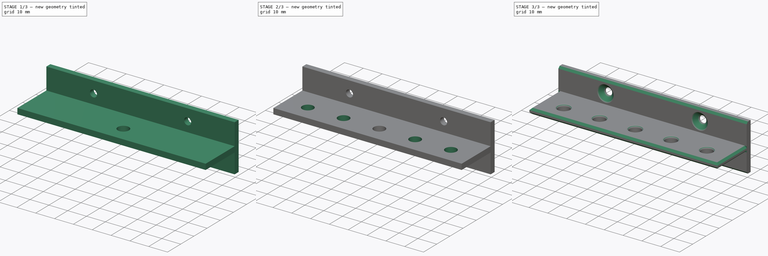
[diagram: build sequence overview — one tinted view per stage of 3, left to right]
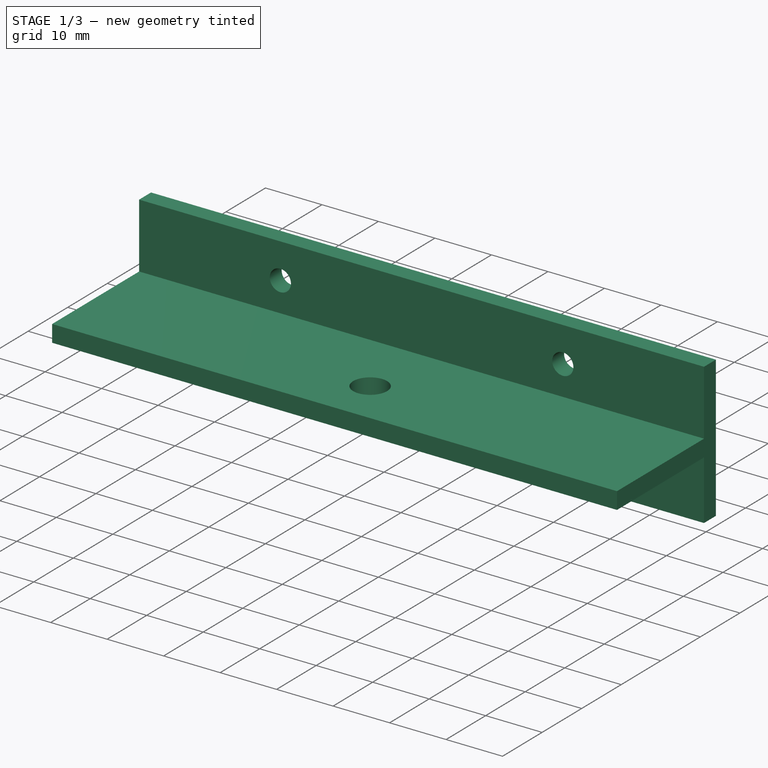
[diagram: stage 1 of 3 — iso view after this stage's code; geometry added in this stage tinted green]
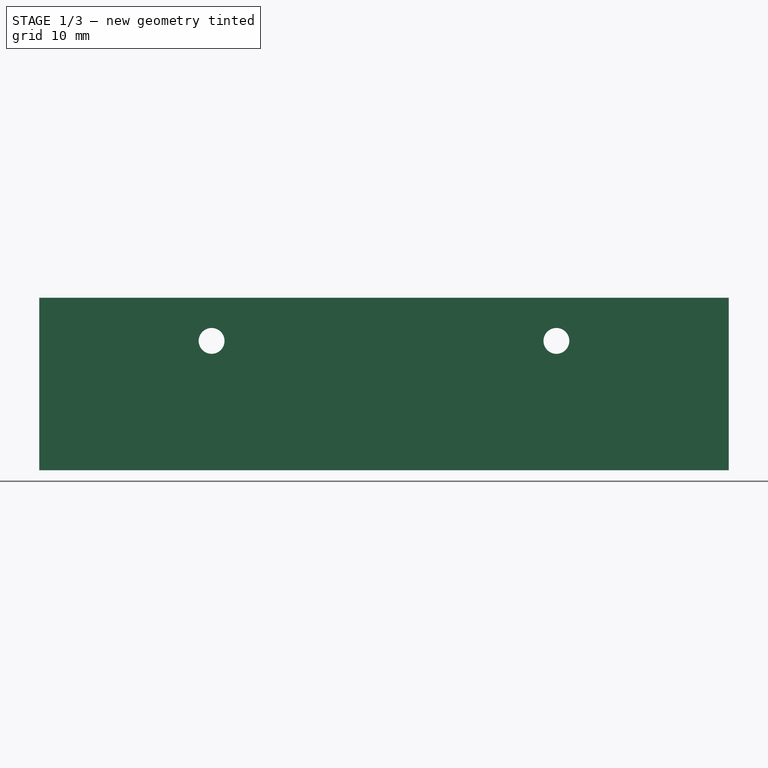
[diagram: stage 1 of 3 — front view after this stage's code; geometry added in this stage tinted green]
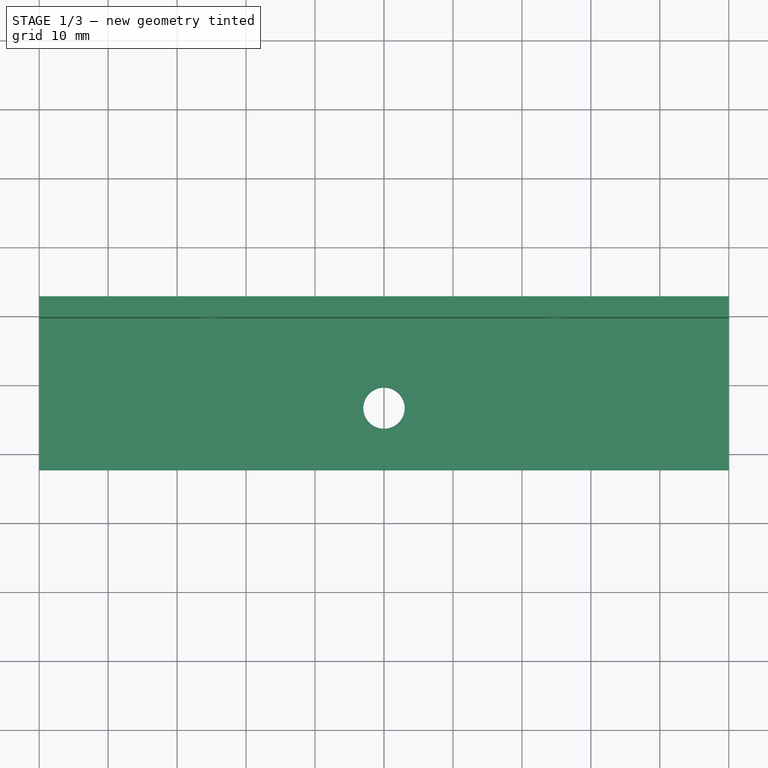
[diagram: stage 1 of 3 — top view after this stage's code; geometry added in this stage tinted green]
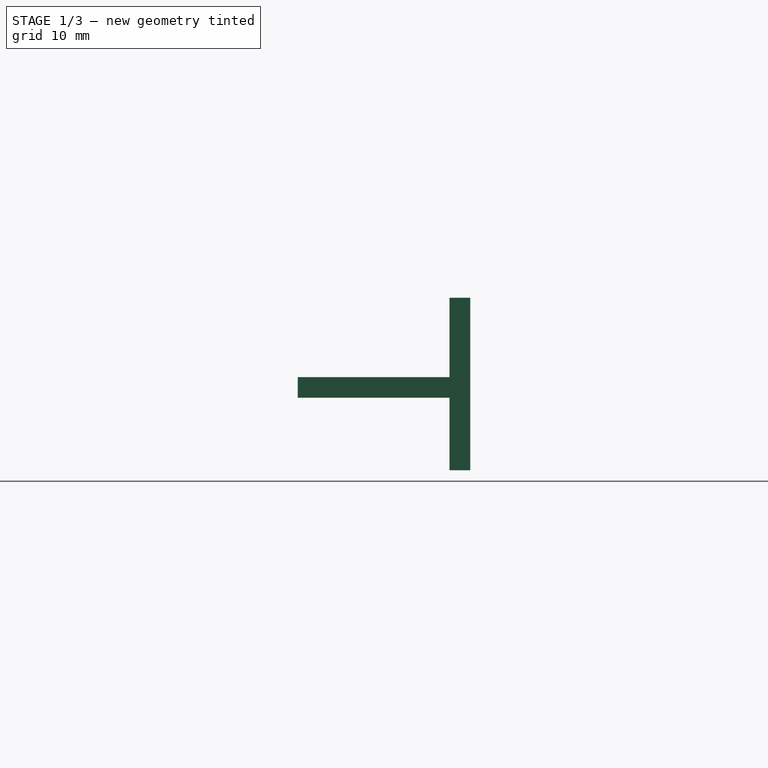
[diagram: stage 1 of 3 — right view after this stage's code; geometry added in this stage tinted green]
FCSTD DOCUMENT  (FreeCAD 0.20R29603 (Git))
Label: 5xScrewdriverWallHolder
License: All rights reserved
LicenseURL: http://en.wikipedia.org/wiki/All_rights_reserved
objects: Sketcher::SketchObject×3, PartDesign::Pad×2, PartDesign::LinearPattern×2, PartDesign::Chamfer×2, Spreadsheet::Sheet×1, PartDesign::Pocket×1, PartDesign::Fillet×1, PartDesign::Body×1, App::Part×1
note: 18 computed .brp shape members not serialized (recipe doc carries the construction recipe); baked Part::Feature solids carry a one-line shape summary decoded from their .brp

FEATURE [Spreadsheet::Sheet] Spreadsheet  label="m"
  cells = A1=tool_width; B1(tool_width)=51; A2=tool_depth; B2(tool_depth)=21.5; A3=holder_width; B3(holder_width)==B1 + B6; C3=Calculated, Do not change; A4=holder_depth; B4(holder_depth)==B2 + B6; C4=Calculated, Do not change; E4=Screw_head_Circumference; F4=Screw_Head_Height; G4=Screw_Shaft_Circumference; A5=holder_height; B5(holder_height)=25; D5=#6; E5=6.84; F5=2.5; G5=3.5; A6=wall_thickness; B6(wall_thickness)=2.5; A7=screwhead_circumference; B7(screwhead_circumference)=7; A8=screwhead_height; B8(screwhead_height)=2.5; A9=screw_shaft_circumference; B9(screw_shaft_circumference)=3.75; A10=Drill_Bit_Circumference; B10(Drill_Bit_Circumference)==screwhead_circumference + 0.5; C10=Calculated, Do not change
FEATURE [Sketcher::SketchObject] Sketch
  FullyConstrained = true
  MapMode = 5
  Support = -> [XY_Plane001]
  sketch-geometry (5):
    g0: LineSegment StartX=-50 StartY=12.5 StartZ=0 EndX=-50 EndY=-12.5 EndZ=0
    g1: LineSegment StartX=-50 StartY=-12.5 StartZ=0 EndX=50 EndY=-12.5 EndZ=0
    g2: LineSegment StartX=50 StartY=-12.5 StartZ=0 EndX=50 EndY=12.5 EndZ=0
    g3: LineSegment StartX=50 StartY=12.5 StartZ=0 EndX=-50 EndY=12.5 EndZ=0
    g4: GeomPoint X=0 Y=0 Z=0
  constraints (12):
    c: Coincident(g0,g1)
    c: Coincident(g1,g2)
    c: Coincident(g2,g3)
    c: Coincident(g3,g0)
    c: Horizontal(g1)
    c: Horizontal(g3)
    c: Vertical(g0)
    c: Vertical(g2)
    c: Symmetric(g1,g0,g4)
    c: Coincident(g4,g-1)
    c: DistanceY(g2,g2) = 25
    c: DistanceX(g3,g3) = 100
FEATURE [PartDesign::Pad] Pad
  Direction = (0,0,1)
  Length = 3
  Length2 = 10
  Profile = -> Sketch
  ReferenceAxis = -> Sketch [N_Axis]
  Type = 0
FEATURE [Sketcher::SketchObject] Sketch001
  AttachmentOffset = pos=(0,2,-12.5) rot=(0,0,1;0rad)
  FullyConstrained = true
  MapMode = 5
  Placement = pos=(0,12.5,2) rot=(1,0,0;1.5708rad)
  Support = -> [XZ_Plane001]
  expr: Constraints[12] = <<m>>.screw_shaft_circumference
  sketch-geometry (7):
    g0: LineSegment StartX=-50 StartY=12.5 StartZ=0 EndX=-50 EndY=-12.5 EndZ=0
    g1: LineSegment StartX=-50 StartY=-12.5 StartZ=0 EndX=50 EndY=-12.5 EndZ=0
    g2: LineSegment StartX=50 StartY=-12.5 StartZ=0 EndX=50 EndY=12.5 EndZ=0
    g3: LineSegment StartX=50 StartY=12.5 StartZ=0 EndX=-50 EndY=12.5 EndZ=0
    g4: GeomPoint X=0 Y=0 Z=0
    g5: Circle CenterX=-25 CenterY=6.25 CenterZ=0 NormalX=0 NormalY=0 NormalZ=1 AngleXU=0 Radius=1.875
    g6: Circle CenterX=25 CenterY=6.25 CenterZ=0 NormalX=0 NormalY=0 NormalZ=1 AngleXU=0 Radius=1.875
  constraints (18):
    c: Coincident(g0,g1)
    c: Coincident(g1,g2)
    c: Coincident(g2,g3)
    c: Coincident(g3,g0)
    c: Horizontal(g1)
    c: Horizontal(g3)
    c: Vertical(g0)
    c: Vertical(g2)
    c: Symmetric(g1,g0,g4)
    c: Coincident(g4,g-1)
    c: DistanceY(g2,g2) = 25
    c: DistanceX(g3,g3) = 100
    c: Diameter(g5) = 3.75
    c: DistanceX(g0,g5) = 25
    c: DistanceY(g4,g5) = 6.25
    c: Equal(g5,g6)
    c: Horizontal(g5,g6)
    c: DistanceX(g4,g6) = 25
FEATURE [PartDesign::Pad] Pad001
  BaseFeature = -> Pad
  Direction = (0,-1,2e-16)
  Length = 3
  Length2 = 10
  Profile = -> Sketch001
  ReferenceAxis = -> Sketch001 [N_Axis]
  Type = 0
FEATURE [Sketcher::SketchObject] Sketch002
  AttachmentOffset = pos=(0,0,3) rot=(0,0,1;0rad)
  FullyConstrained = true
  MapMode = 5
  Placement = pos=(0,0,3) rot=(0,0,1;0rad)
  Support = -> [XY_Plane001]
  sketch-geometry (1):
    g0: Circle CenterX=0 CenterY=-3.5 CenterZ=0 NormalX=0 NormalY=0 NormalZ=1 AngleXU=0 Radius=3
  constraints (3):
    c: Diameter(g0) = 6
    c: DistanceY(g0,g-1) = 3.5
    c: PointOnObject(g0,g-2)
FEATURE [PartDesign::Pocket] Pocket
  BaseFeature = -> Pad001
  Direction = (0,0,-1)
  Length = 5
  Length2 = 5
  Profile = -> Sketch002
  ReferenceAxis = -> Sketch002 [N_Axis]
  Type = 1
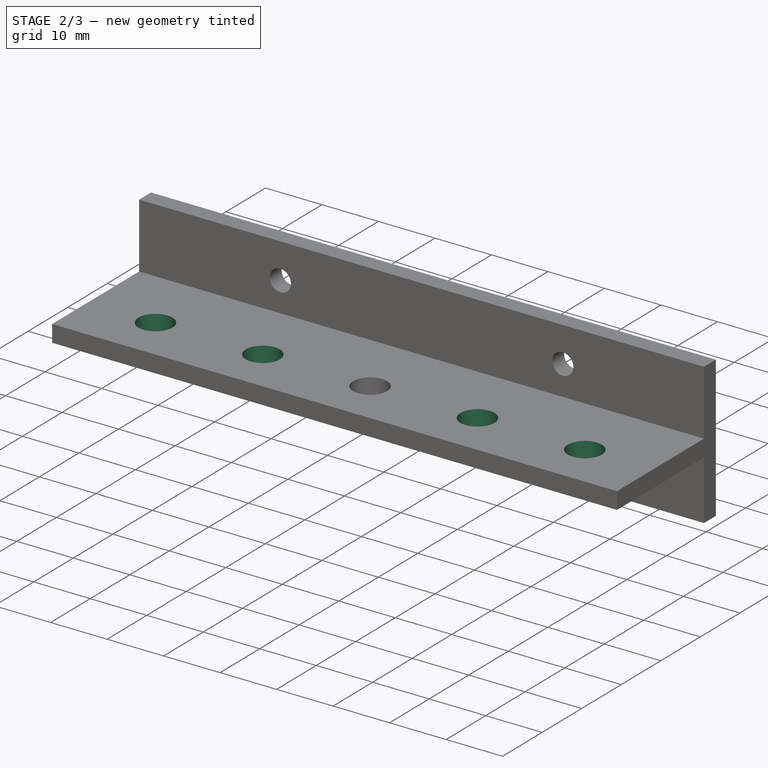
[diagram: stage 2 of 3 — iso view after this stage's code; geometry added in this stage tinted green]
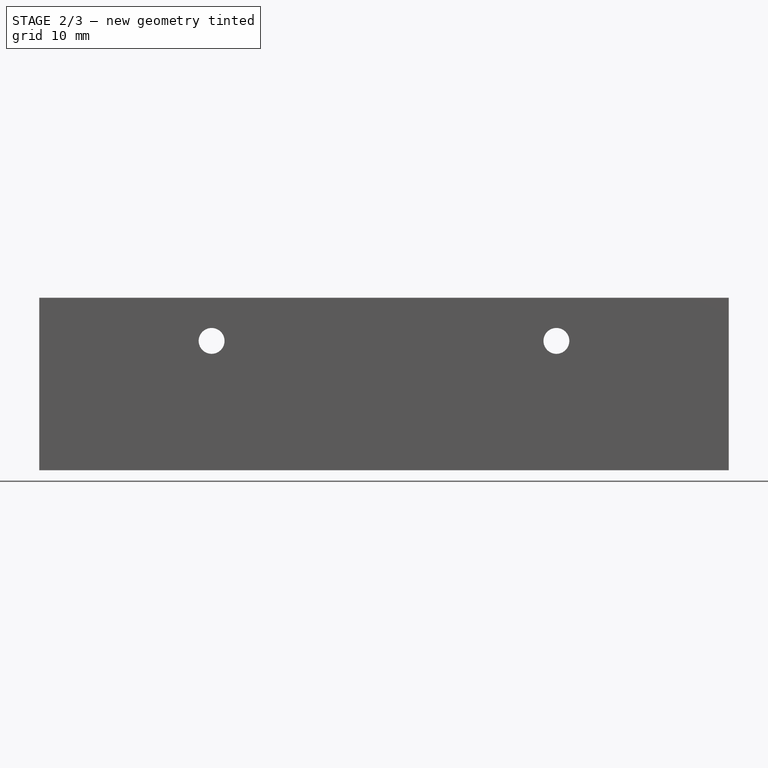
[diagram: stage 2 of 3 — front view after this stage's code; geometry added in this stage tinted green]
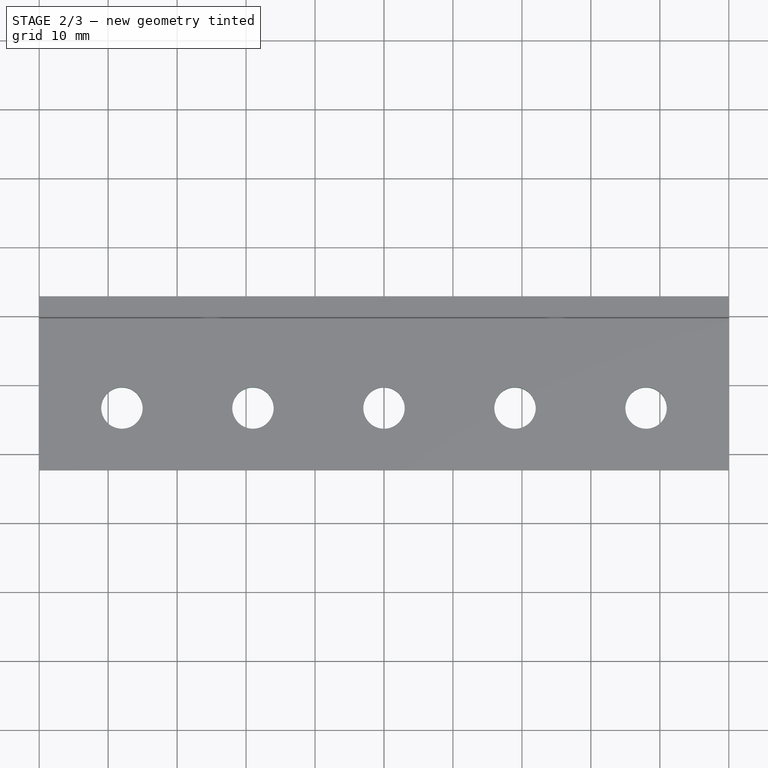
[diagram: stage 2 of 3 — top view after this stage's code; geometry added in this stage tinted green]
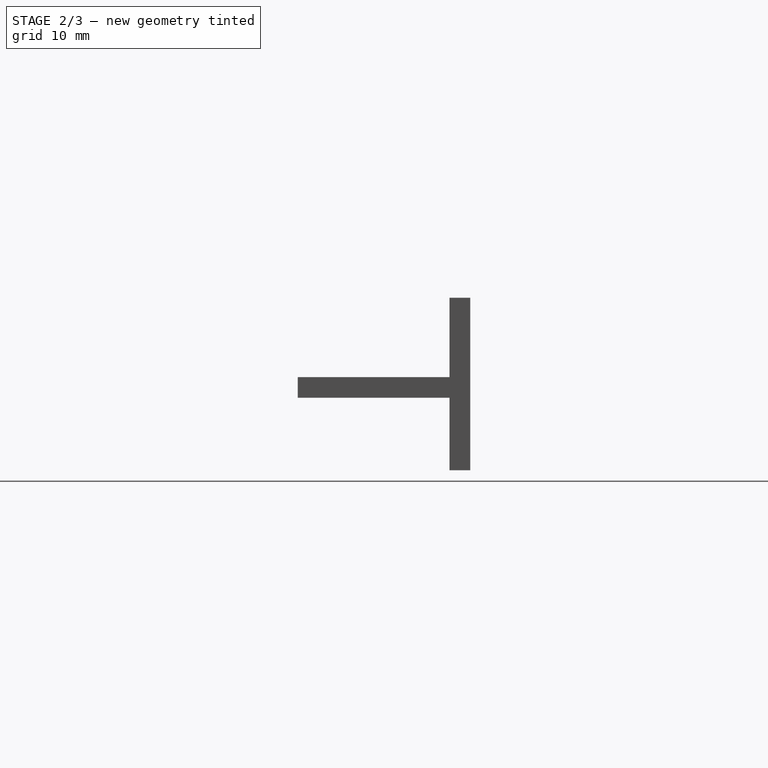
[diagram: stage 2 of 3 — right view after this stage's code; geometry added in this stage tinted green]
FEATURE [PartDesign::LinearPattern] LinearPattern
  BaseFeature = -> Pocket
  Direction = -> X_Axis001
  Length = 38
  Occurrences = 3
  Originals = -> [Pocket]
FEATURE [PartDesign::LinearPattern] LinearPattern001
  BaseFeature = -> LinearPattern
  Direction = -> Sketch002 [H_Axis]
  Length = 38
  Occurrences = 3
  Originals = -> [Pocket]
  Reversed = true
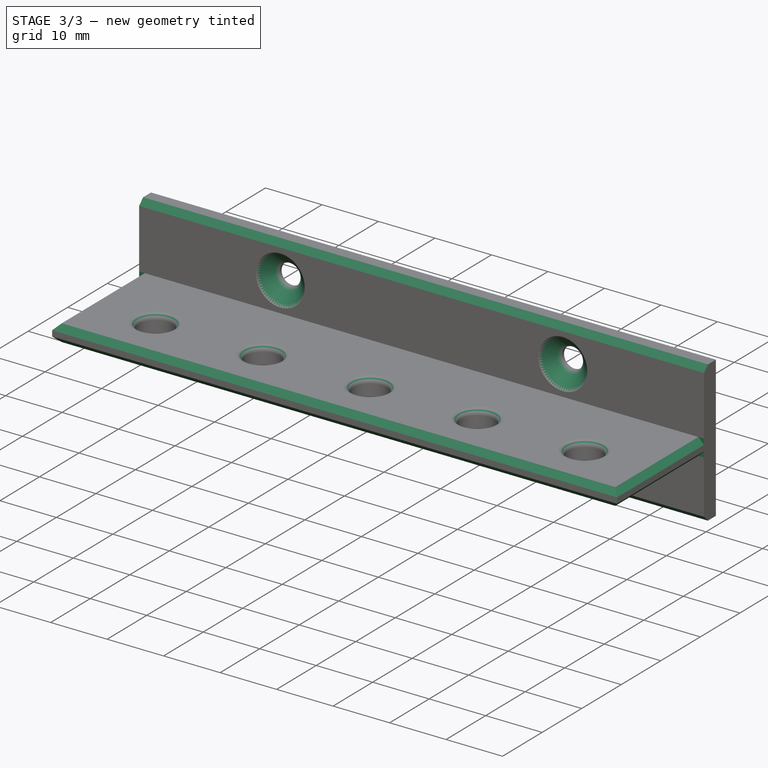
[diagram: stage 3 of 3 — iso view after this stage's code; geometry added in this stage tinted green]
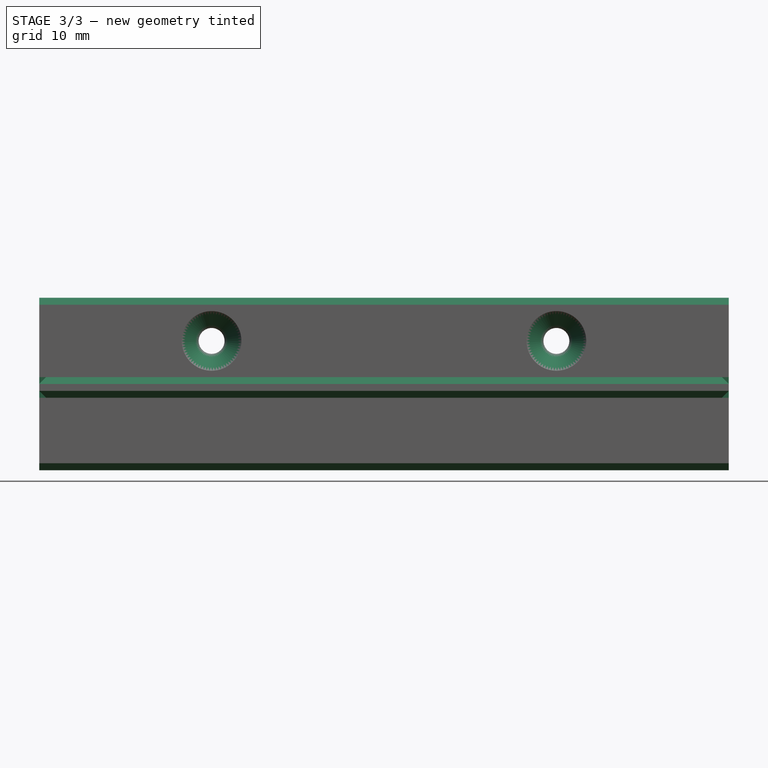
[diagram: stage 3 of 3 — front view after this stage's code; geometry added in this stage tinted green]
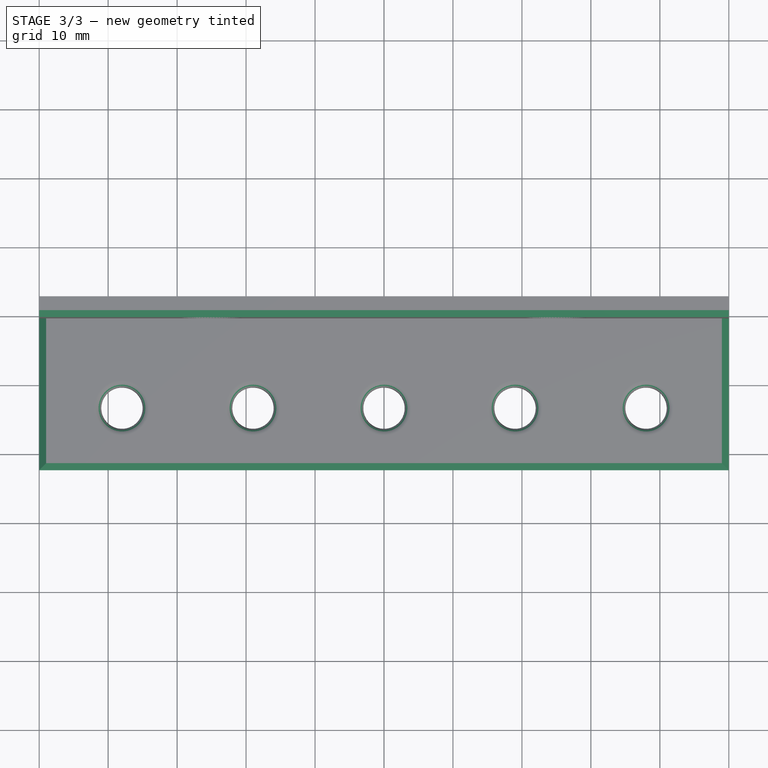
[diagram: stage 3 of 3 — top view after this stage's code; geometry added in this stage tinted green]
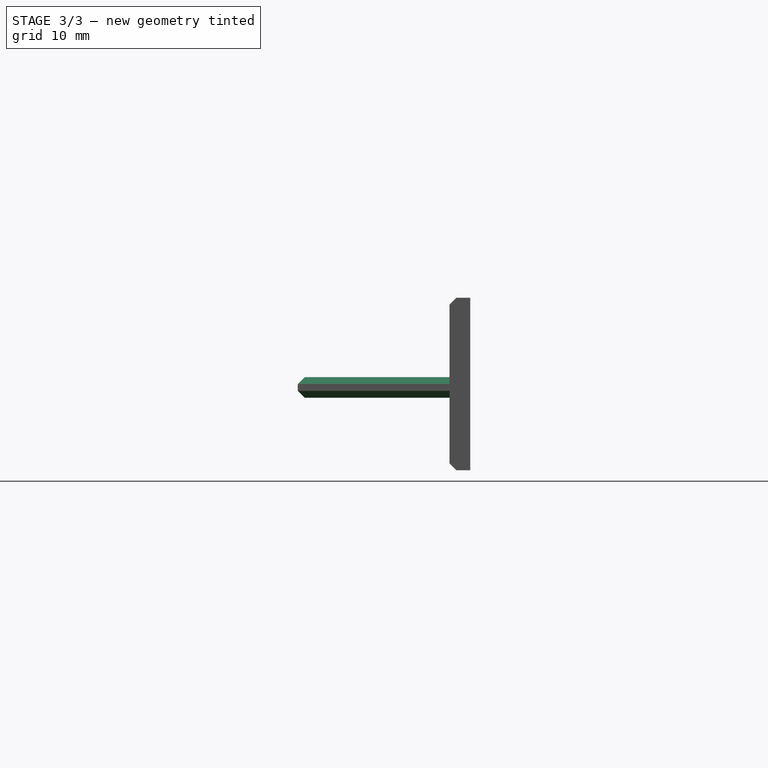
[diagram: stage 3 of 3 — right view after this stage's code; geometry added in this stage tinted green]
FEATURE [PartDesign::Fillet] Fillet
  Base = -> LinearPattern001 [Edge36,Edge34,Edge35,Edge37,Edge38]
  BaseFeature = -> LinearPattern001
  Radius = 1
  SupportTransform = false
  UseAllEdges = false
FEATURE [PartDesign::Chamfer] Chamfer
  Angle = 45
  Base = -> Fillet [Edge15,Edge16]
  BaseFeature = -> Fillet
  ChamferType = 0
  FlipDirection = false
  Size = 2.45
  Size2 = 1
  SupportTransform = false
  UseAllEdges = false
FEATURE [PartDesign::Chamfer] Chamfer001
  Angle = 45
  Base = -> Chamfer [Edge5,Edge15,Edge40,Edge14,Edge13,Edge35,Edge38,Edge71]
  BaseFeature = -> Chamfer
  ChamferType = 0
  FlipDirection = false
  Size = 1
  Size2 = 1
  SupportTransform = false
  UseAllEdges = false
FEATURE [PartDesign::Body] Body
  Group = -> [Sketch,Pad,Sketch001,Pad001,Sketch002,Pocket,LinearPattern,LinearPattern001,Fillet,Chamfer,Chamfer001]
  Origin = -> Origin001
  Tip = -> Chamfer001
FEATURE [App::Part] Part
  Group = -> [Body]
  Origin = -> Origin
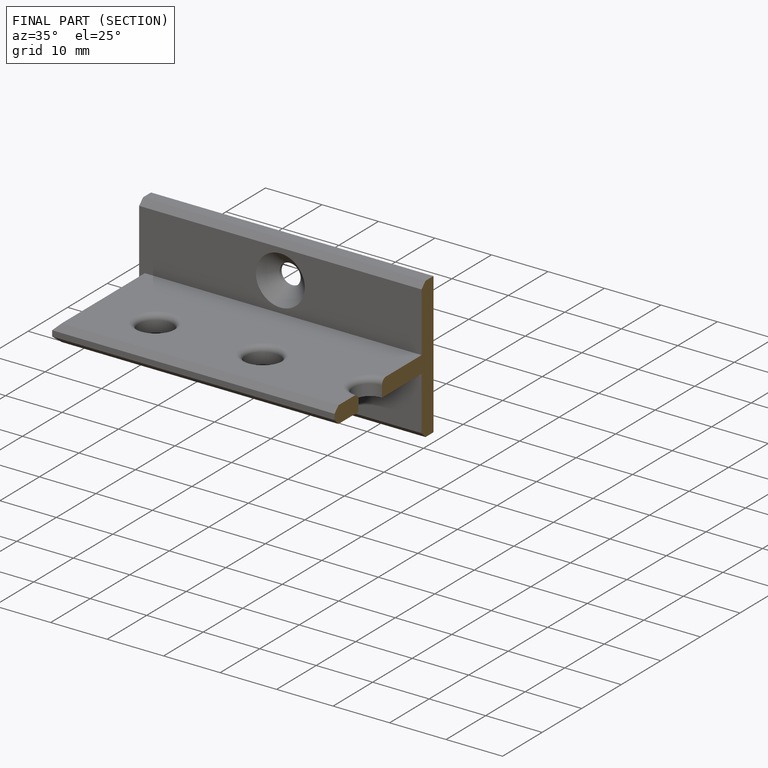
[diagram: finished part — half-section view (interior)]
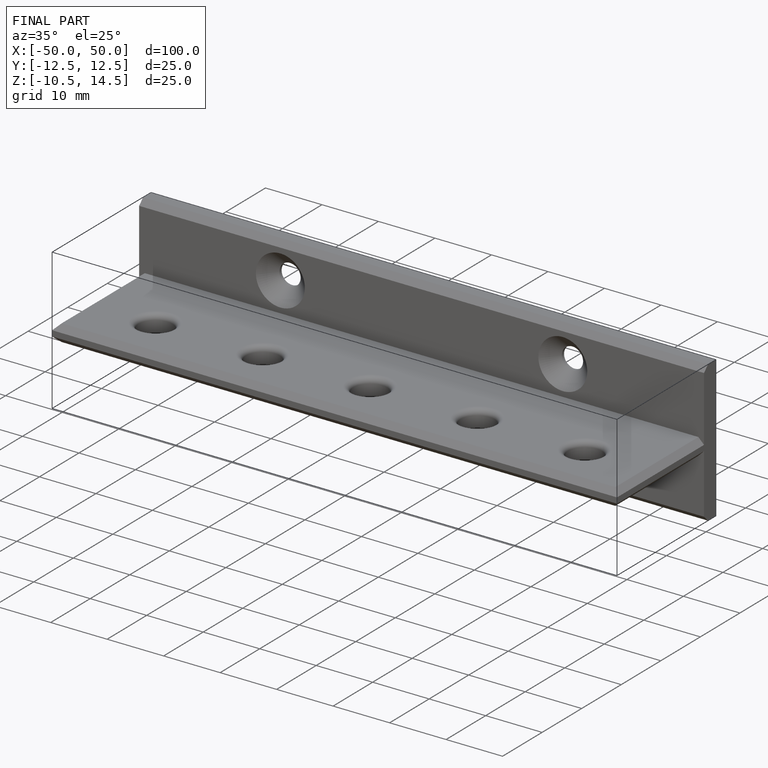
[diagram: finished part — iso view with bounding-box wireframe]
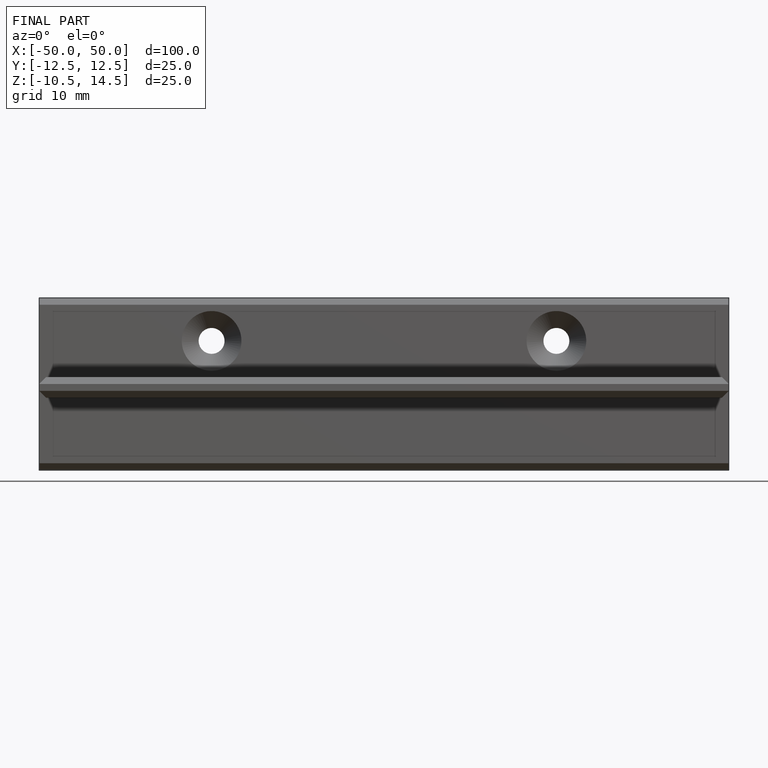
[diagram: finished part — front view with bounding-box wireframe]
